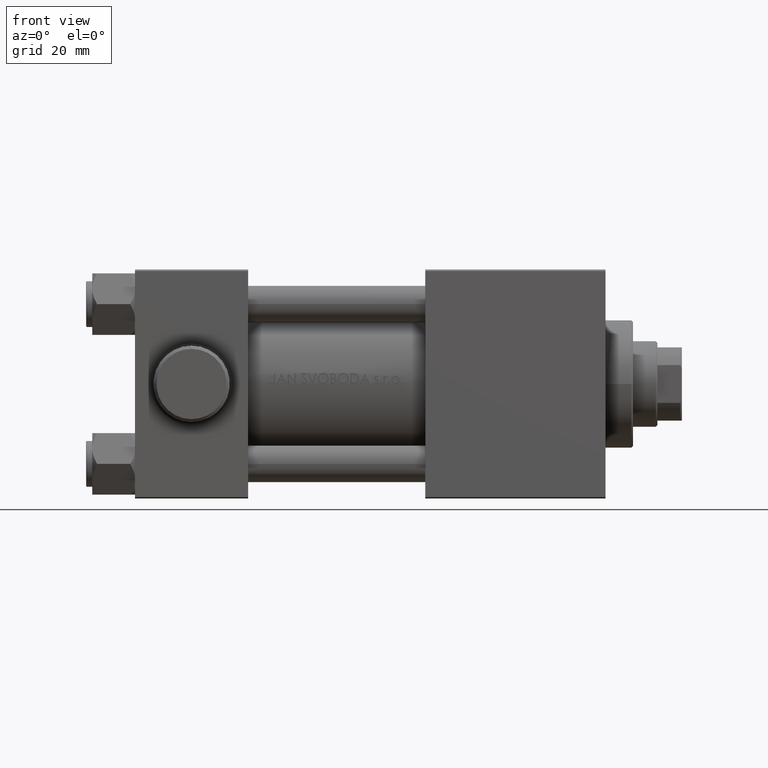
[diagram: clean part render]
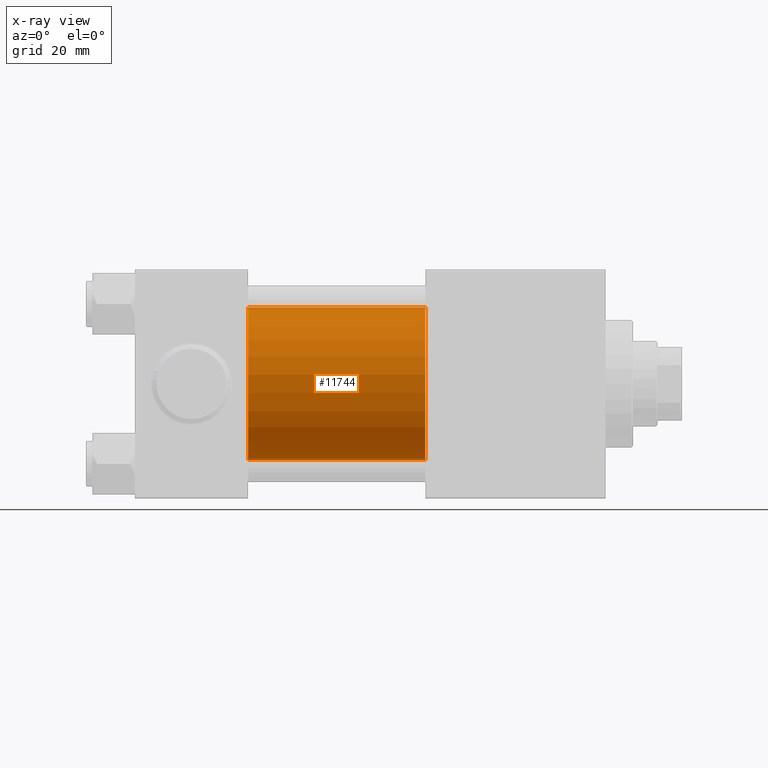
[diagram: x-ray — body ghosted, one internal face saturated and labeled with its STEP entity id]
A machine part, front view, then the same camera in x-ray: the body is ghosted and one INTERNAL B-rep face — a face not visible from any outside direction — is saturated and labeled: STEP entity #11744.
In plain terms, the highlighted cylindrical surface (partial cylindrical patch) has radius 25 mm, axis along (-1, -0, -0).
Its self-contained STEP definition (entity closure, byte-faithful):
#713 = EDGE_CURVE ( 'NONE', #37142, #3582, #43303, .T. ) ;
#1076 = CARTESIAN_POINT ( 'NONE',  ( 37.00000000000000000, -3.469446951953614189E-15, 25.00000000000000000 ) ) ;
#2496 = EDGE_LOOP ( 'NONE', ( #9450, #41570, #31922, #26862 ) ) ;
#3582 = VERTEX_POINT ( 'NONE', #29158 ) ;
#3815 = VECTOR ( 'NONE', #33283, 1000.000000000000000 ) ;
#4841 = DIRECTION ( 'NONE',  ( 1.000000000000000000, 0.000000000000000000, 0.000000000000000000 ) ) ;
#7374 = EDGE_CURVE ( 'NONE', #33128, #37142, #33750, .T. ) ;
#8156 = AXIS2_PLACEMENT_3D ( 'NONE', #25659, #4841, #18170 ) ;
#8568 = DIRECTION ( 'NONE',  ( -1.000000000000000000, -0.000000000000000000, -0.000000000000000000 ) ) ;
#8708 = EDGE_CURVE ( 'NONE', #33128, #17120, #12078, .T. ) ;
#9267 = CARTESIAN_POINT ( 'NONE',  ( 95.00000000000000000, -3.469446951953614189E-15, 0.000000000000000000 ) ) ;
#9450 = ORIENTED_EDGE ( 'NONE', *, *, #8708, .T. ) ;
#11744 = ADVANCED_FACE ( 'NONE', ( #16049 ), #34072, .F. ) ;
#12078 = CIRCLE ( 'NONE', #30011, 25.00000000000000000 ) ;
#12737 = DIRECTION ( 'NONE',  ( -1.000000000000000000, -0.000000000000000000, -0.000000000000000000 ) ) ;
#15258 = CARTESIAN_POINT ( 'NONE',  ( 95.00000000000000000, -3.469446951953614189E-15, 25.00000000000000000 ) ) ;
#16009 = LINE ( 'NONE', #38007, #32054 ) ;
#16049 = FACE_OUTER_BOUND ( 'NONE', #2496, .T. ) ;
#17120 = VERTEX_POINT ( 'NONE', #40427 ) ;
#18170 = DIRECTION ( 'NONE',  ( 0.000000000000000000, 0.000000000000000000, -1.000000000000000000 ) ) ;
#19150 = EDGE_CURVE ( 'NONE', #17120, #3582, #16009, .T. ) ;
#23550 = DIRECTION ( 'NONE',  ( 1.000000000000000000, 0.000000000000000000, 0.000000000000000000 ) ) ;
#23620 = CARTESIAN_POINT ( 'NONE',  ( 95.00000000000000000, -3.469446951953614189E-15, 25.00000000000000000 ) ) ;
#25659 = CARTESIAN_POINT ( 'NONE',  ( 37.00000000000000000, -3.469446951953614189E-15, 0.000000000000000000 ) ) ;
#26120 = DIRECTION ( 'NONE',  ( 0.000000000000000000, 0.000000000000000000, 1.000000000000000000 ) ) ;
#26862 = ORIENTED_EDGE ( 'NONE', *, *, #7374, .F. ) ;
#29158 = CARTESIAN_POINT ( 'NONE',  ( 37.00000000000000000, -4.078299540852317872E-16, -25.00000000000000000 ) ) ;
#30011 = AXIS2_PLACEMENT_3D ( 'NONE', #9267, #23550, #30797 ) ;
#30098 = CARTESIAN_POINT ( 'NONE',  ( 95.00000000000000000, -3.469446951953614189E-15, 0.000000000000000000 ) ) ;
#30797 = DIRECTION ( 'NONE',  ( 0.000000000000000000, 0.000000000000000000, -1.000000000000000000 ) ) ;
#31922 = ORIENTED_EDGE ( 'NONE', *, *, #713, .F. ) ;
#32054 = VECTOR ( 'NONE', #12737, 1000.000000000000000 ) ;
#33128 = VERTEX_POINT ( 'NONE', #23620 ) ;
#33283 = DIRECTION ( 'NONE',  ( -1.000000000000000000, -0.000000000000000000, -0.000000000000000000 ) ) ;
#33750 = LINE ( 'NONE', #15258, #3815 ) ;
#34072 = CYLINDRICAL_SURFACE ( 'NONE', #41611, 25.00000000000000000 ) ;
#37142 = VERTEX_POINT ( 'NONE', #1076 ) ;
#38007 = CARTESIAN_POINT ( 'NONE',  ( 95.00000000000000000, -4.078299540852317872E-16, -25.00000000000000000 ) ) ;
#40427 = CARTESIAN_POINT ( 'NONE',  ( 95.00000000000000000, -4.078299540852317872E-16, -25.00000000000000000 ) ) ;
#41570 = ORIENTED_EDGE ( 'NONE', *, *, #19150, .T. ) ;
#41611 = AXIS2_PLACEMENT_3D ( 'NONE', #30098, #8568, #26120 ) ;
#43303 = CIRCLE ( 'NONE', #8156, 25.00000000000000000 ) ;